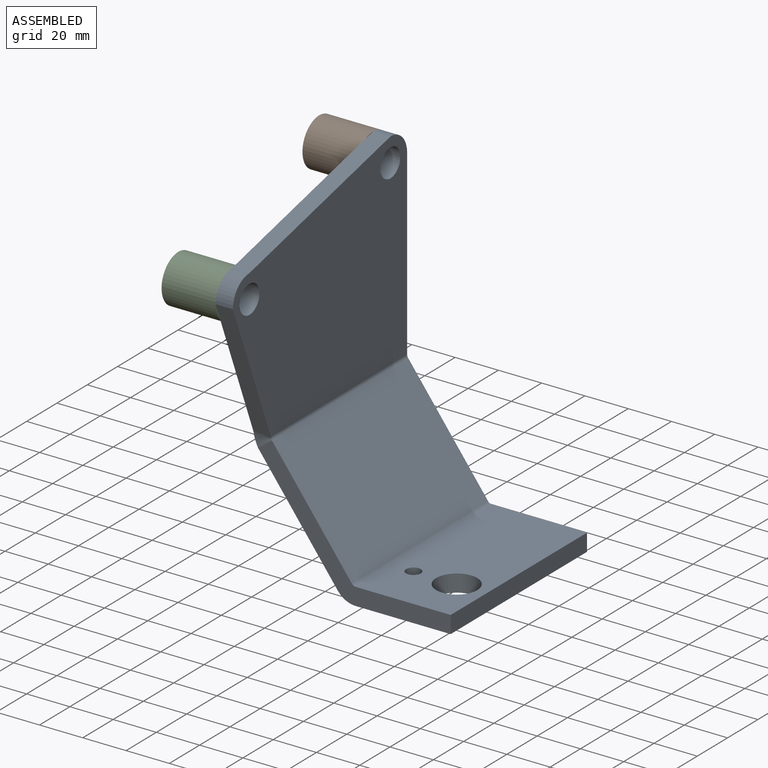
[diagram: assembled view]
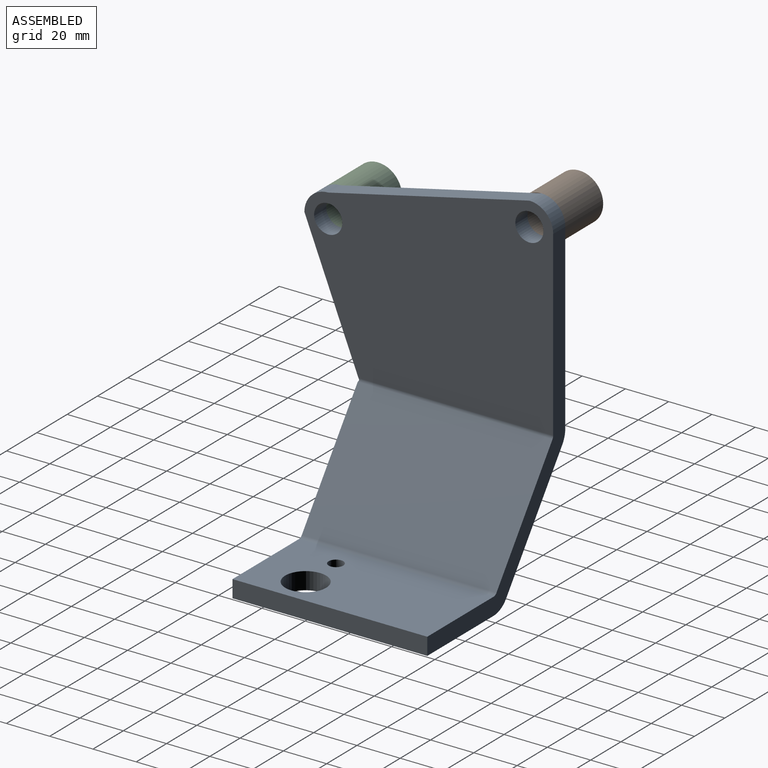
[diagram: assembled view, second angle]
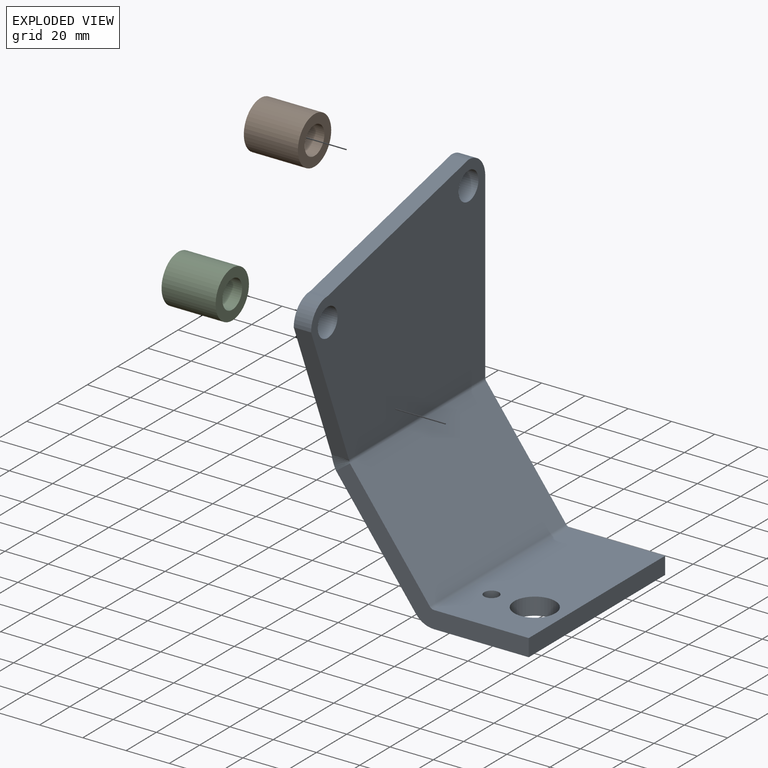
[diagram: exploded view]
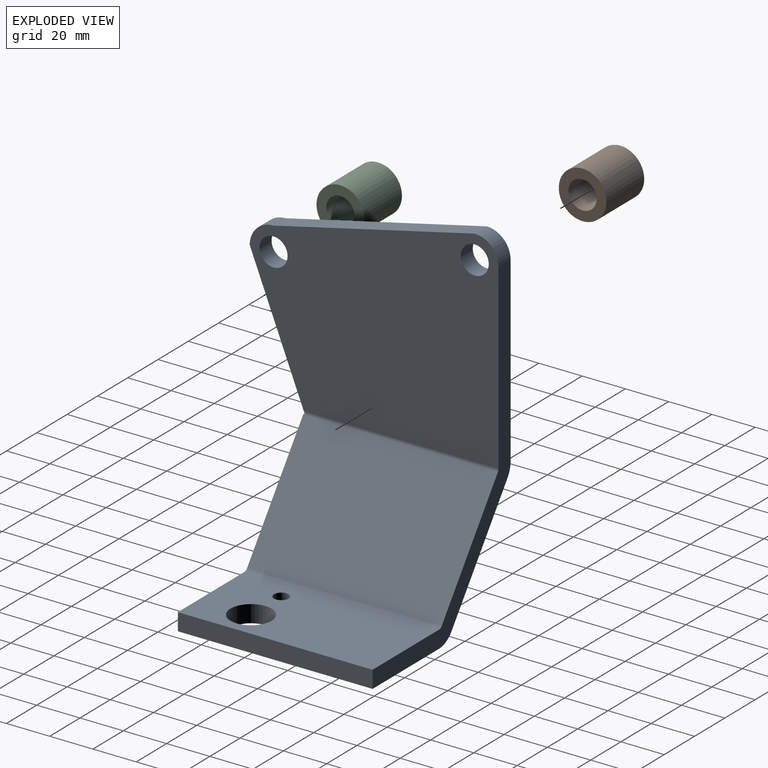
[diagram: exploded view, second angle]
ASSEMBLY  parts=3 mates=2
PART A: 28 faces, bbox 91.1x115x155.5 mm
  f0: plane 43.84x8mm, normal (0,1,0), area 350.7mm2, adj f1,f5,f6,f25
  f1: plane 90x8mm, normal (1,0,0), area 720mm2, adj f0,f4,f5,f6
  f2: cylinder r=3.4mm len=8mm, axis (0,0,-1), area 170.9mm2, adj f5,f6
  f3: cylinder r=9.5mm len=19mm, axis (0,0,-1), area 477.5mm2, adj f5,f6
  f4: plane 43.84x8mm, normal (0,-1,0), area 350.7mm2, adj f1,f5,f6,f24
  f5: plane 90x43.84mm, normal (0,0,-1), area 3625.8mm2, adj f0,f1,f2,f3,f4,f26
  f6: plane 90x43.84mm, normal (0,0,1), area 3625.8mm2, adj f0,f1,f2,f3,f4,f27
  f7: plane 62.74x25mm, normal (0,-0.93,-0.37), area 540.3mm2, adj f8,f14,f15,f20
  f8: cylinder r=11mm len=11mm, axis (-1,0,0), area 138.2mm2, adj f7,f9,f14,f15
  f9: plane 93x21.5mm, normal (0,-0.23,0.97), area 763.6mm2, adj f8,f10,f14,f15
  f10: cylinder r=11mm len=11mm, axis (-1,0,0), area 138.2mm2, adj f9,f11,f14,f15
  f11: plane 84.24x8mm, normal (0,1,0), area 673.9mm2, adj f10,f14,f15,f21
  f12: cylinder r=6.5mm len=13mm, axis (-1,0,0), area 326.7mm2, adj f14,f15
  f13: cylinder r=6.5mm len=13mm, axis (-1,0,0), area 326.7mm2, adj f14,f15
  f14: plane 115x95.24mm, normal (-1,0,0), area 8614.8mm2, adj f7,f8,f9,f10,f11,f12,f13,f22
  f15: plane 115x95.24mm, normal (1,0,0), area 8614.8mm2, adj f7,f8,f9,f10,f11,f12,f13,f23
  f16: plane 54.72x43.41mm, normal (0,1,0), area 497.2mm2, adj f18,f19,f21,f25
  f17: plane 54.72x43.41mm, normal (0,-1,0), area 497.2mm2, adj f18,f19,f20,f24
  f18: plane 90x49.96mm, normal (-0.8,0,-0.59), area 5594mm2, adj f16,f17,f22,f26
  f19: plane 90x49.96mm, normal (0.8,0,0.59), area 5594mm2, adj f16,f17,f23,f27
  f20: bspline ~8.45x6.13mm, area 32.8mm2, adj f7,f17,f22,f23
  f21: plane 8.45x6.13mm, normal (0,1,0), area 32.1mm2, adj f11,f16,f22,f23
  f22: cylinder r=10.3mm len=90mm, axis (0,-1,0), area 590.7mm2, adj f14,f18,f20,f21
  f23: cylinder r=2.3mm len=90mm, axis (0,-1,0), area 131.9mm2, adj f15,f19,f20,f21
  f24: plane 8.93x8.28mm, normal (0,-1,0), area 47.1mm2, adj f4,f17,f26,f27
  f25: plane 8.93x8.28mm, normal (0,1,0), area 47.1mm2, adj f0,f16,f26,f27
  f26: cylinder r=10.3mm len=90mm, axis (0,-1,0), area 865.4mm2, adj f5,f18,f24,f25
  f27: cylinder r=2.3mm len=90mm, axis (0,-1,0), area 193.3mm2, adj f6,f19,f24,f25
PART B: 4 faces, bbox 22x25x22 mm
  f0: cylinder r=6.5mm len=25mm, axis (0,1,0), area 1021mm2, adj f2,f3
  f1: cylinder r=11mm len=25mm, axis (0,1,0), area 1727.9mm2, adj f2,f3
  f2: plane 22x22mm, normal (0,-1,0), area 247.4mm2, adj f0,f1
  f3: plane 22x22mm, normal (0,1,0), area 247.4mm2, adj f0,f1
PART C: same geometry as B
PLACE A at identity
PLACE B rot(axis=(0.58,-0.58,0.58),120deg) t=(-71.12,-11,136.5)mm
PLACE C rot(axis=(0.58,-0.58,0.58),120deg) t=(-71.12,-104,115)mm
MATE fastened B.f0 <-> A.f10  axis (1,0,0) through (-46.12,-11,136.5)mm
MATE fastened C.f0 <-> A.f8  axis (1,0,0) through (-46.12,-104,115)mm
